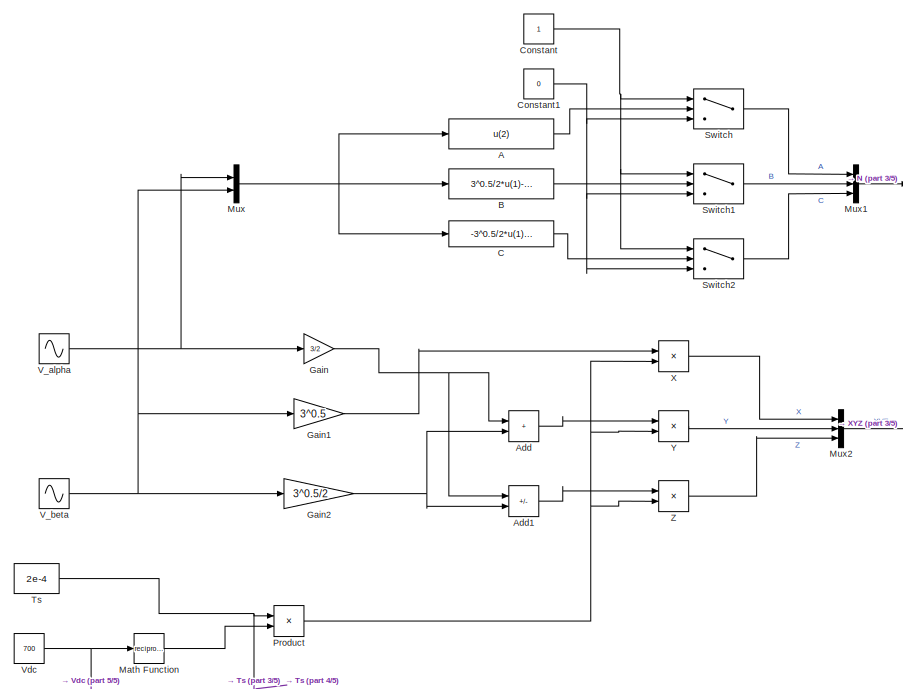
[diagram: root canvas - part 1/5, left side, full height]
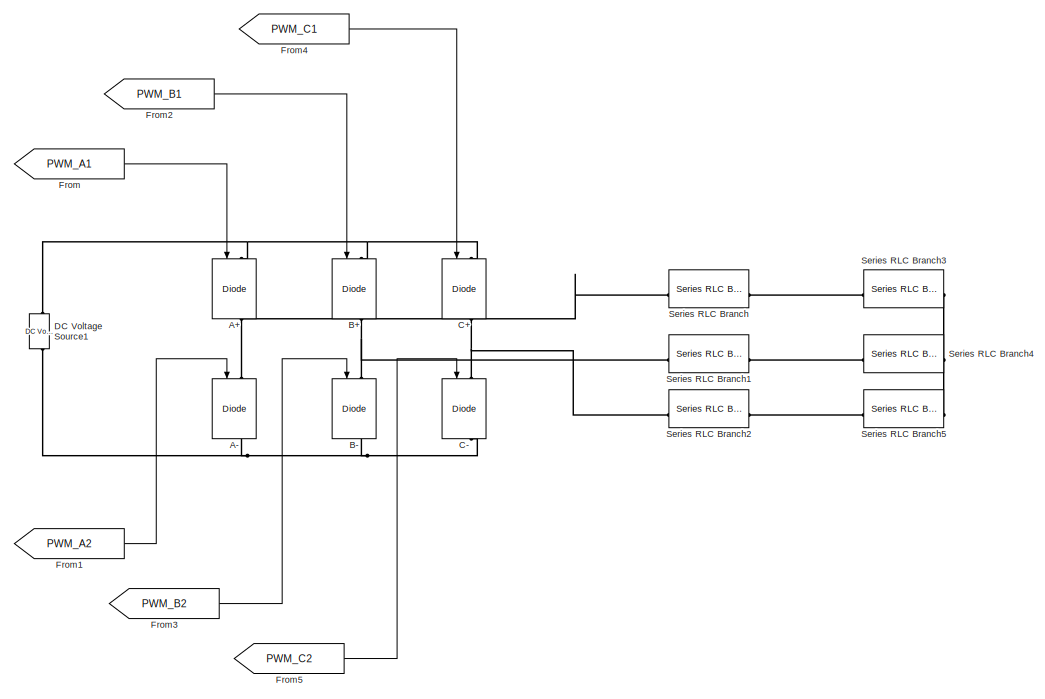
[diagram: root canvas - part 2/5, right side, full height]
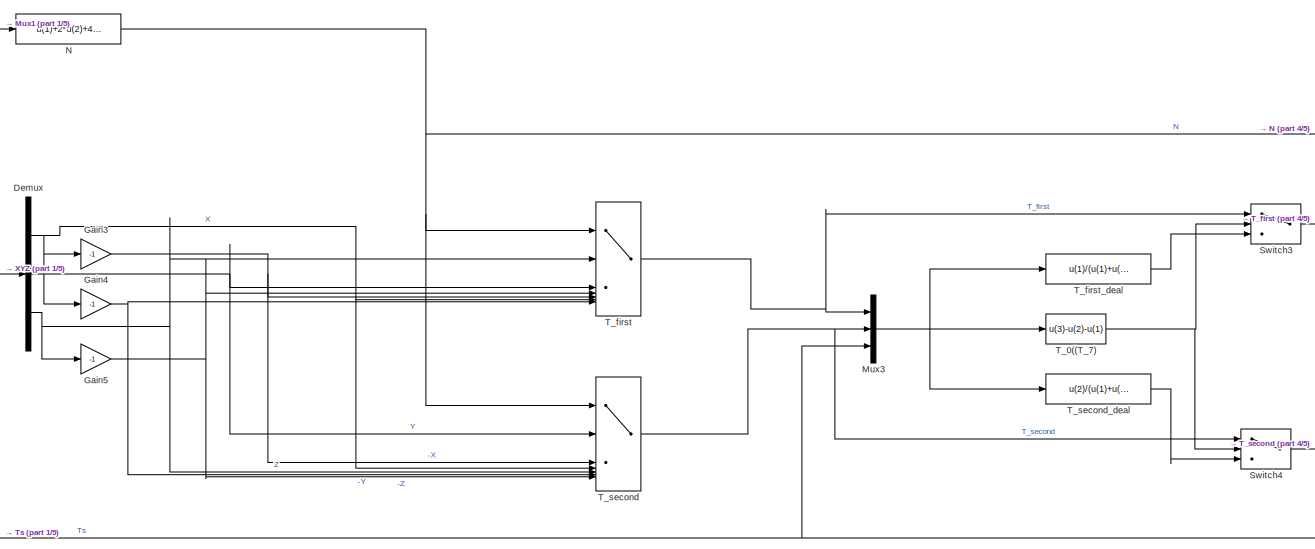
[diagram: root canvas - part 3/5, middle left region]
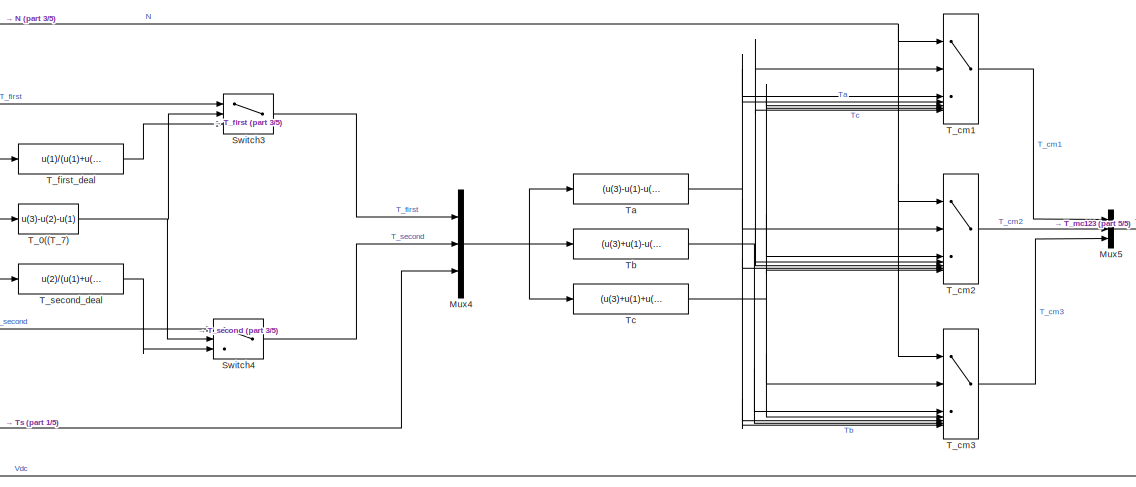
[diagram: root canvas - part 4/5, central region]
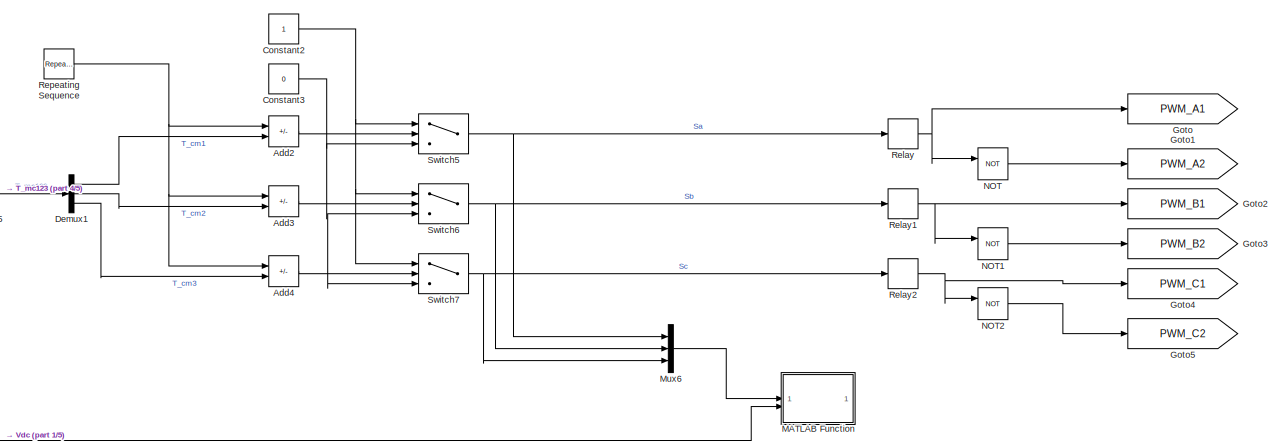
[diagram: root canvas - part 5/5, central region]
MODEL slx_f170fe4db194
KIND model
CONFIG AbsTol = auto
CONFIG EnableMultiTasking = off
CONFIG FixedStep = 1e-5
CONFIG MaxStep = auto
CONFIG MinStep = auto
CONFIG RelTol = 1e-3
CONFIG SampleTimeConstraint = Unconstrained
CONFIG SolverName = FixedStepAuto
CONFIG StartTime = 0.0
CONFIG StopTime = 0.05
BLOCK [Fcn] A
  Expr = u(2)
BLOCK [Reference] A+  REF=spsIGBTDiodeLib/IGBT//Diode
  Commented = on
  LibrarySourceBlock = sps_lib/Power Electronics/IGBT//Diode
  NameLocation = left
  SourceBlock = spsIGBTDiodeLib/IGBT//Diode
  SourceType = IGBT/Diode
BLOCK [Reference] A-  REF=spsIGBTDiodeLib/IGBT//Diode
  Commented = on
  LibrarySourceBlock = sps_lib/Power Electronics/IGBT//Diode
  NameLocation = left
  SourceBlock = spsIGBTDiodeLib/IGBT//Diode
  SourceType = IGBT/Diode
BLOCK [Sum] Add
  IconShape = rectangular
BLOCK [Sum] Add1
  IconShape = rectangular
  Inputs = -+
BLOCK [Sum] Add2
  IconShape = rectangular
  Inputs = +-
BLOCK [Sum] Add3
  IconShape = rectangular
  Inputs = +-
BLOCK [Sum] Add4
  IconShape = rectangular
  Inputs = +-
BLOCK [Fcn] B
  Expr = 3^0.5/2*u(1)-0.5*u(2)
BLOCK [Reference] B+  REF=spsIGBTDiodeLib/IGBT//Diode
  Commented = on
  LibrarySourceBlock = sps_lib/Power Electronics/IGBT//Diode
  NameLocation = left
  SourceBlock = spsIGBTDiodeLib/IGBT//Diode
  SourceType = IGBT/Diode
BLOCK [Reference] B-  REF=spsIGBTDiodeLib/IGBT//Diode
  Commented = on
  LibrarySourceBlock = sps_lib/Power Electronics/IGBT//Diode
  NameLocation = left
  SourceBlock = spsIGBTDiodeLib/IGBT//Diode
  SourceType = IGBT/Diode
BLOCK [Fcn] C
  Expr = -3^0.5/2*u(1)-0.5*u(2)
BLOCK [Reference] C+  REF=spsIGBTDiodeLib/IGBT//Diode
  Commented = on
  LibrarySourceBlock = sps_lib/Power Electronics/IGBT//Diode
  NameLocation = left
  SourceBlock = spsIGBTDiodeLib/IGBT//Diode
  SourceType = IGBT/Diode
BLOCK [Reference] C-  REF=spsIGBTDiodeLib/IGBT//Diode
  Commented = on
  LibrarySourceBlock = sps_lib/Power Electronics/IGBT//Diode
  NameLocation = left
  SourceBlock = spsIGBTDiodeLib/IGBT//Diode
  SourceType = IGBT/Diode
BLOCK [Constant] Constant
BLOCK [Constant] Constant1
  Value = 0
BLOCK [Constant] Constant2
BLOCK [Constant] Constant3
  Value = 0
BLOCK [Reference] DC Voltage Source1  REF=spsDCVoltageSourceLib/DC Voltage Source
  Commented = on
  LibrarySourceBlock = sps_lib/Sources/DC Voltage Source
  SourceBlock = spsDCVoltageSourceLib/DC Voltage Source
  SourceType = DC Voltage Source
BLOCK [Demux] Demux
  Outputs = 3
BLOCK [Demux] Demux1
  Outputs = 3
BLOCK [From] From
  Commented = on
  GotoTag = PWM_A1
BLOCK [From] From1
  Commented = on
  GotoTag = PWM_A2
BLOCK [From] From2
  Commented = on
  GotoTag = PWM_B1
BLOCK [From] From3
  Commented = on
  GotoTag = PWM_B2
BLOCK [From] From4
  Commented = on
  GotoTag = PWM_C1
BLOCK [From] From5
  Commented = on
  GotoTag = PWM_C2
BLOCK [Gain] Gain
  Gain = 3/2
BLOCK [Gain] Gain1
  Gain = 3^0.5
BLOCK [Gain] Gain2
  Gain = 3^0.5/2
BLOCK [Gain] Gain3
  Gain = -1
BLOCK [Gain] Gain4
  Gain = -1
BLOCK [Gain] Gain5
  Gain = -1
BLOCK [Goto] Goto
  Commented = on
  GotoTag = PWM_A1
BLOCK [Goto] Goto1
  Commented = on
  GotoTag = PWM_A2
BLOCK [Goto] Goto2
  Commented = on
  GotoTag = PWM_B1
BLOCK [Goto] Goto3
  Commented = on
  GotoTag = PWM_B2
BLOCK [Goto] Goto4
  Commented = on
  GotoTag = PWM_C1
BLOCK [Goto] Goto5
  Commented = on
  GotoTag = PWM_C2
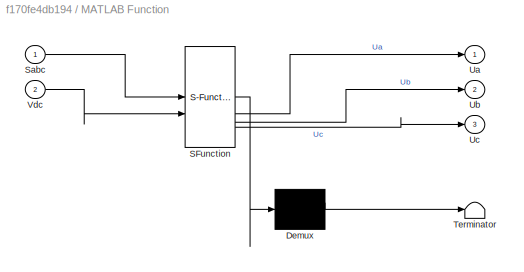
BLOCK [SubSystem] MATLAB Function
  ErrorFcn = Stateflow.Translate.translate
  LibrarySourceBlock = simulink/User-Defined\nFunctions/MATLAB Function
  PermitHierarchicalResolution = ExplicitOnly
  SFBlockType = MATLAB Function
  TreatAsAtomicUnit = on
BLOCK [Demux] MATLAB Function/ Demux 
  Outputs = 1
BLOCK [S-Function] MATLAB Function/ SFunction 
  EnableBusSupport = on
  FunctionName = sf_sfun
  PortCounts = [2 4]
  SFcnIsStateOwnerBlock = off
  SFunctionDeploymentMode = off
  Tag = Stateflow S-Function 2
BLOCK [Terminator] MATLAB Function/ Terminator 
BLOCK [Inport] MATLAB Function/Sabc
BLOCK [Outport] MATLAB Function/Ua
BLOCK [Outport] MATLAB Function/Ub
  Port = 2
BLOCK [Outport] MATLAB Function/Uc
  Port = 3
BLOCK [Inport] MATLAB Function/Vdc
  Port = 2
BLOCK [Math] Math Function
  Operator = reciprocal
BLOCK [Mux] Mux
  DisplayOption = bar
  Inputs = 2
BLOCK [Mux] Mux1
  DisplayOption = bar
  Inputs = 3
BLOCK [Mux] Mux2
  DisplayOption = bar
  Inputs = 3
BLOCK [Mux] Mux3
  DisplayOption = bar
  Inputs = 3
BLOCK [Mux] Mux4
  DisplayOption = bar
  Inputs = 3
BLOCK [Mux] Mux5
  DisplayOption = bar
  Inputs = 3
BLOCK [Mux] Mux6
  DisplayOption = bar
  Inputs = 3
BLOCK [Fcn] N
  Expr = u(1)+2*u(2)+4*u(3)
BLOCK [Logic] NOT
  AllPortsSameDT = off
  Commented = on
  IconShape = distinctive
  Operator = NOT
  OutDataTypeStr = boolean
BLOCK [Logic] NOT1
  AllPortsSameDT = off
  Commented = on
  IconShape = distinctive
  Operator = NOT
  OutDataTypeStr = boolean
BLOCK [Logic] NOT2
  AllPortsSameDT = off
  Commented = on
  IconShape = distinctive
  Operator = NOT
  OutDataTypeStr = boolean
BLOCK [Product] Product
BLOCK [Relay] Relay
  Commented = on
BLOCK [Relay] Relay1
  Commented = on
BLOCK [Relay] Relay2
  Commented = on
BLOCK [Reference] Repeating Sequence  REF=simulink/Sources/Repeating
Sequence
  SourceBlock = simulink/Sources/Repeating\nSequence
  SourceType = Repeating table
BLOCK [Reference] Series RLC Branch  REF=spsSeriesRLCBranchLib/Series RLC Branch
  Commented = on
  LibrarySourceBlock = sps_lib/Passives/Series RLC Branch
  SourceBlock = spsSeriesRLCBranchLib/Series RLC Branch
  SourceType = Series RLC Branch
BLOCK [Reference] Series RLC Branch1  REF=spsSeriesRLCBranchLib/Series RLC Branch
  Commented = on
  LibrarySourceBlock = sps_lib/Passives/Series RLC Branch
  SourceBlock = spsSeriesRLCBranchLib/Series RLC Branch
  SourceType = Series RLC Branch
BLOCK [Reference] Series RLC Branch2  REF=spsSeriesRLCBranchLib/Series RLC Branch
  Commented = on
  LibrarySourceBlock = sps_lib/Passives/Series RLC Branch
  SourceBlock = spsSeriesRLCBranchLib/Series RLC Branch
  SourceType = Series RLC Branch
BLOCK [Reference] Series RLC Branch3  REF=spsSeriesRLCBranchLib/Series RLC Branch
  Commented = on
  LibrarySourceBlock = sps_lib/Passives/Series RLC Branch
  SourceBlock = spsSeriesRLCBranchLib/Series RLC Branch
  SourceType = Series RLC Branch
BLOCK [Reference] Series RLC Branch4  REF=spsSeriesRLCBranchLib/Series RLC Branch
  Commented = on
  LibrarySourceBlock = sps_lib/Passives/Series RLC Branch
  SourceBlock = spsSeriesRLCBranchLib/Series RLC Branch
  SourceType = Series RLC Branch
BLOCK [Reference] Series RLC Branch5  REF=spsSeriesRLCBranchLib/Series RLC Branch
  Commented = on
  LibrarySourceBlock = sps_lib/Passives/Series RLC Branch
  SourceBlock = spsSeriesRLCBranchLib/Series RLC Branch
  SourceType = Series RLC Branch
BLOCK [Switch] Switch
  Criteria = u2 > Threshold
  InputSameDT = off
  SaturateOnIntegerOverflow = off
BLOCK [Switch] Switch1
  Criteria = u2 > Threshold
  InputSameDT = off
  SaturateOnIntegerOverflow = off
BLOCK [Switch] Switch2
  Criteria = u2 > Threshold
  InputSameDT = off
  SaturateOnIntegerOverflow = off
BLOCK [Switch] Switch3
  Criteria = u2 > Threshold
  InputSameDT = off
  SaturateOnIntegerOverflow = off
BLOCK [Switch] Switch4
  Criteria = u2 > Threshold
  InputSameDT = off
  SaturateOnIntegerOverflow = off
BLOCK [Switch] Switch5
  InputSameDT = off
  SaturateOnIntegerOverflow = off
BLOCK [Switch] Switch6
  InputSameDT = off
  SaturateOnIntegerOverflow = off
BLOCK [Switch] Switch7
  InputSameDT = off
  SaturateOnIntegerOverflow = off
BLOCK [Fcn] T_0((T_7)
  Expr = u(3)-u(2)-u(1)
BLOCK [MultiPortSwitch] T_cm1
  InputSameDT = off
  Inputs = 6
  SaturateOnIntegerOverflow = off
BLOCK [MultiPortSwitch] T_cm2
  InputSameDT = off
  Inputs = 6
  SaturateOnIntegerOverflow = off
BLOCK [MultiPortSwitch] T_cm3
  InputSameDT = off
  Inputs = 6
  SaturateOnIntegerOverflow = off
BLOCK [MultiPortSwitch] T_first
  InputSameDT = off
  Inputs = 6
  SaturateOnIntegerOverflow = off
BLOCK [Fcn] T_first_deal
  Expr = u(1)/(u(1)+u(2))*u(3)
BLOCK [MultiPortSwitch] T_second
  InputSameDT = off
  Inputs = 6
  SaturateOnIntegerOverflow = off
BLOCK [Fcn] T_second_deal
  Expr = u(2)/(u(1)+u(2))*u(3)
BLOCK [Fcn] Ta
  Expr = (u(3)-u(1)-u(2))/4
BLOCK [Fcn] Tb
  Expr = (u(3)+u(1)-u(2))/4
BLOCK [Fcn] Tc
  Expr = (u(3)+u(1)+u(2))/4
BLOCK [Constant] Ts
  Value = 2e-4
BLOCK [Sin] V_alpha
  Amplitude = 200
  Frequency = 100*pi
  Phase = pi/2
  SampleTime = 0
BLOCK [Sin] V_beta
  Amplitude = 200
  Frequency = 100*pi
  SampleTime = 0
BLOCK [Constant] Vdc
  Value = 700
BLOCK [Product] X
BLOCK [Product] Y
BLOCK [Product] Z
LINE A:1 -> Switch:2
LINE Add1:1 -> Z:1
LINE Add2:1 -> Switch5:2
LINE Add3:1 -> Switch6:2
LINE Add4:1 -> Switch7:2
LINE Add:1 -> Y:1
LINE B:1 -> Switch1:2
LINE C:1 -> Switch2:2
NET Constant1:1 -> Switch1:3, Switch2:3, Switch:3
NET Constant2:1 -> Switch5:1, Switch6:1, Switch7:1
NET Constant3:1 -> Switch5:3, Switch6:3, Switch7:3
NET Constant:1 -> Switch1:1, Switch2:1, Switch:1
LINE Demux1:1 -> Add2:2
LINE Demux1:2 -> Add3:2
LINE Demux1:3 -> Add4:2
NET Demux:1 -> Gain3:1, T_first:6, T_second:4
NET Demux:2 -> Gain4:1, T_first:3, T_second:2
NET Demux:3 -> Gain5:1, T_first:2, T_second:5
LINE From1:1 -> A-:1
LINE From2:1 -> B+:1
LINE From3:1 -> B-:1
LINE From4:1 -> C+:1
LINE From5:1 -> C-:1
LINE From:1 -> A+:1
LINE Gain1:1 -> X:1
NET Gain2:1 -> Add1:2, Add:2
NET Gain3:1 -> T_first:5, T_second:3
NET Gain4:1 -> T_first:7, T_second:6
NET Gain5:1 -> T_first:4, T_second:7
NET Gain:1 -> Add1:1, Add:1
LINE Math Function:1 -> Product:2
LINE Mux1:1 -> N:1
LINE Mux2:1 -> Demux:1
NET Mux3:1 -> T_0((T_7):1, T_first_deal:1, T_second_deal:1
NET Mux4:1 -> Ta:1, Tb:1, Tc:1
LINE Mux5:1 -> Demux1:1
LINE Mux6:1 -> MATLAB Function:1
NET Mux:1 -> A:1, B:1, C:1
NET N:1 -> T_cm1:1, T_cm2:1, T_cm3:1, T_first:1, T_second:1
LINE NOT1:1 -> Goto3:1
LINE NOT2:1 -> Goto5:1
LINE NOT:1 -> Goto1:1
NET Product:1 -> X:2, Y:2, Z:2
NET Relay1:1 -> Goto2:1, NOT1:1
NET Relay2:1 -> Goto4:1, NOT2:1
NET Relay:1 -> Goto:1, NOT:1
NET Repeating Sequence:1 -> Add2:1, Add3:1, Add4:1
LINE Switch1:1 -> Mux1:2
LINE Switch2:1 -> Mux1:3
LINE Switch3:1 -> Mux4:1
LINE Switch4:1 -> Mux4:2
NET Switch5:1 -> Mux6:1, Relay:1
NET Switch6:1 -> Mux6:2, Relay1:1
NET Switch7:1 -> Mux6:3, Relay2:1
LINE Switch:1 -> Mux1:1
NET T_0((T_7):1 -> Switch3:2, Switch4:2
LINE T_cm1:1 -> Mux5:1
LINE T_cm2:1 -> Mux5:2
LINE T_cm3:1 -> Mux5:3
NET T_first:1 -> Mux3:1, Switch3:1
LINE T_first_deal:1 -> Switch3:3
NET T_second:1 -> Mux3:2, Switch4:1
LINE T_second_deal:1 -> Switch4:3
NET Ta:1 -> T_cm1:3, T_cm1:4, T_cm2:2, T_cm2:6, T_cm3:5, T_cm3:7
NET Tb:1 -> T_cm1:2, T_cm1:7, T_cm2:4, T_cm2:5, T_cm3:3, T_cm3:6
NET Tc:1 -> T_cm1:5, T_cm1:6, T_cm2:3, T_cm2:7, T_cm3:2, T_cm3:4
NET Ts:1 -> Mux3:3, Mux4:3, Product:1
NET V_alpha:1 -> Gain:1, Mux:1
NET V_beta:1 -> Gain1:1, Gain2:1, Mux:2
NET Vdc:1 -> MATLAB Function:2, Math Function:1
LINE X:1 -> Mux2:1
LINE Y:1 -> Mux2:2
LINE Z:1 -> Mux2:3
PNET net1: A+:LConn1 -- B+:LConn1 -- C+:LConn1 -- DC Voltage Source1:RConn1
PNET net2: A+:RConn1 -- A-:LConn1 -- Series RLC Branch:LConn1
PNET net3: A-:RConn1 -- B-:RConn1 -- C-:RConn1 -- DC Voltage Source1:LConn1
PNET net4: B+:RConn1 -- B-:LConn1 -- Series RLC Branch1:LConn1
PNET net5: C+:RConn1 -- C-:LConn1 -- Series RLC Branch2:LConn1
PLINE Series RLC Branch1:RConn1 -- Series RLC Branch4:LConn1
PLINE Series RLC Branch2:RConn1 -- Series RLC Branch5:LConn1
PLINE Series RLC Branch3:LConn1 -- Series RLC Branch:RConn1
PNET net6: Series RLC Branch3:RConn1 -- Series RLC Branch4:RConn1 -- Series RLC Branch5:RConn1
note: NET lines group one-source signal fan-out (src -> all destinations, sorted); 1:1 wires keep LINE; PNET lines group multi-terminal physical nets as a canonical sorted terminal list (undirected conserving connections); 2-terminal nets keep the pairwise PLINE form
CHART MATLAB Function states=1 transitions=1
  STATE_LABEL 'eML_blk_kernel()'
  STATE_LABEL 'SCRIPT:\nfunction [Ua,Ub,Uc] = fcn(Sabc,Vdc)\n    Ua = Vdc/3*(2*Sabc(1)-1*Sabc(2)-1*Sabc(3));\n    Ub = Vdc/3*(-1*Sabc(1)+2*Sabc(2)-1*Sabc(3));\n    Uc = Vdc/3*(-1*Sabc(1)-1*Sabc(2)+2*Sabc(3));\nend\n'
CHART  states=0 transitions=0
